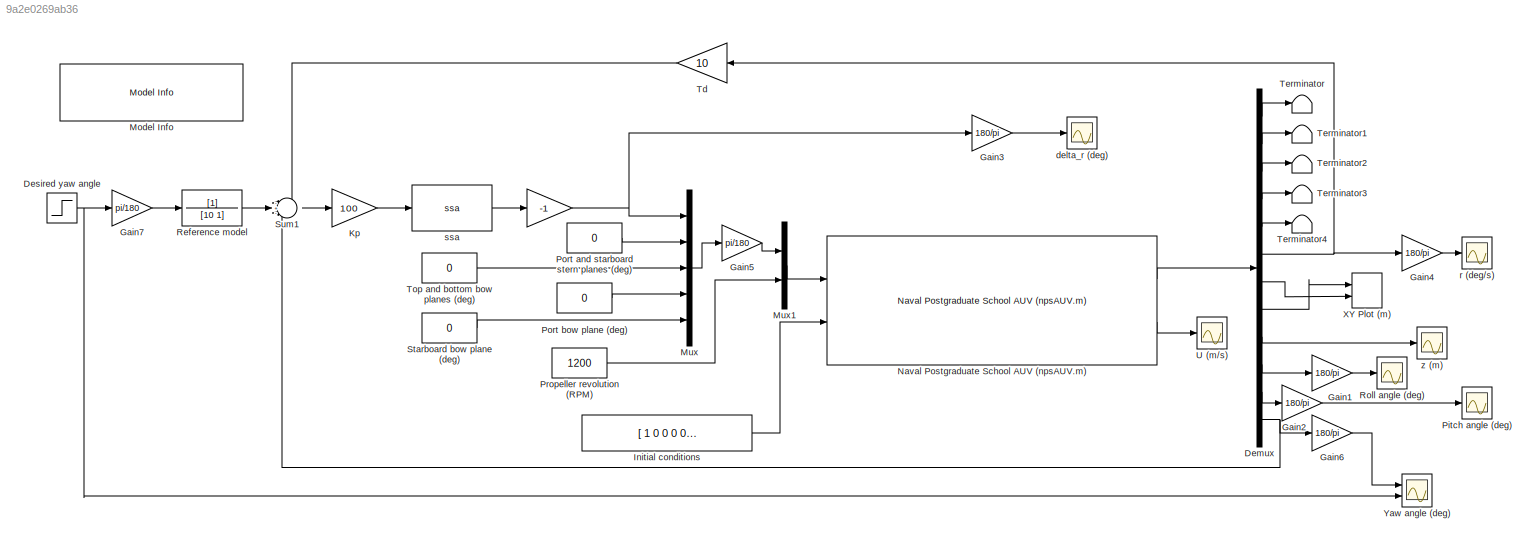
MODEL slx_9a2e0269ab36
KIND model
CONFIG AbsTol = auto
CONFIG EnableMultiTasking = on
CONFIG FixedStep = 0.05
CONFIG MaxStep = auto
CONFIG MinStep = auto
CONFIG RelTol = 1e-3
CONFIG SampleTimeConstraint = Unconstrained
CONFIG SolverName = ode4
CONFIG StartTime = 0.0
CONFIG StopTime = 200
BLOCK [Gain]    
  Gain = -1
  OutDataTypeStr = Inherit: Same as input
  ParamDataTypeStr = Inherit: Same as input
  SaturateOnIntegerOverflow = on
BLOCK [Demux] Demux
  Outputs = 12
  Ports = [1, 12]
BLOCK [Step] Desired yaw angle
  After = 10
  SampleTime = 0
  Time = 10
BLOCK [Gain] Gain1
  Gain = 180/pi
BLOCK [Gain] Gain2
  Gain = 180/pi
BLOCK [Gain] Gain3
  Gain = 180/pi
BLOCK [Gain] Gain4
  Gain = 180/pi
BLOCK [Gain] Gain5
  Gain = pi/180
BLOCK [Gain] Gain6
  Gain = 180/pi
BLOCK [Gain] Gain7
  Gain = pi/180
BLOCK [Constant] Initial conditions
  Value = [ 1 0 0 0 0 0 0 0 10 0 0 0]
BLOCK [Gain] Kp
  Gain = 100
  NameLocation = top
  OutDataTypeStr = Inherit: Same as input
  ParamDataTypeStr = Inherit: Same as input
  SaturateOnIntegerOverflow = on
BLOCK [Reference] Model Info  REF=simulink/Model-Wide
Utilities/Model Info
  Ports = []
  SourceBlock = simulink/Model-Wide\nUtilities/Model Info
  SourceProductBaseCode = SL
  SourceType = CMBlock
BLOCK [Mux] Mux
  DisplayOption = bar
  Inputs = 5
  Ports = [5, 1]
BLOCK [Mux] Mux1
  DisplayOption = bar
  Inputs = 2
  Ports = [2, 1]
BLOCK [Reference] Naval Postgraduate School AUV (npsAUV.m)   REF=mssSimulink/Marine craft models/Naval Postgraduate School AUV (npsAUV.m)
  Ports = [2, 2]
  SourceBlock = mssSimulink/Marine craft models/Naval Postgraduate School AUV (npsAUV.m)
BLOCK [Scope] Pitch angle (deg)
  Floating = off
  NumInputPorts = 1
  Ports = [1]
  ScopeSpecificationString = Simulink.scopes.TimeScopeBlockCfg('CurrentConfiguration', extmgr.ConfigurationSet(extmgr.Configuration('Core','General UI',true),extmgr.Configuration('Core','Source UI',true),extmgr.Configuration('Sources','WiredSimulink',true,'DataLoggingVariableName','ScopeData3'),extmgr.Configuration('Visuals','Time Domain',true,'SerializedDisplays',{struct('MinYLimReal','-0.07038','MaxYLimReal','0.00782','YLab...<+1413ch>
BLOCK [Constant] Port and starboard stern planes (deg)
  Value = 0
BLOCK [Constant] Port bow plane (deg)
  Value = 0
BLOCK [Constant] Propeller revolution (RPM)
  Value = 1200
BLOCK [TransferFcn] Reference model
  Denominator = [10 1]
BLOCK [Scope] Roll angle (deg)
  Floating = off
  NumInputPorts = 1
  Ports = [1]
  ScopeSpecificationString = Simulink.scopes.TimeScopeBlockCfg('CurrentConfiguration', extmgr.ConfigurationSet(extmgr.Configuration('Core','General UI',true),extmgr.Configuration('Core','Source UI',true),extmgr.Configuration('Sources','WiredSimulink',true,'DataLoggingVariableName','ScopeData2'),extmgr.Configuration('Visuals','Time Domain',true,'SerializedDisplays',{struct('MinYLimReal','-0.10782','MaxYLimReal','0.01199','YLab...<+1413ch>
BLOCK [Constant] Starboard bow plane (deg)
  Value = 0
BLOCK [Sum] Sum1
  InputSameDT = on
  Inputs = -+-
  OutDataTypeStr = Inherit: Same as first input
  Ports = [3, 1]
  SaturateOnIntegerOverflow = on
BLOCK [Gain] Td
  Gain = 10
  NameLocation = top
  OutDataTypeStr = Inherit: Same as input
  ParamDataTypeStr = Inherit: Same as input
  SaturateOnIntegerOverflow = on
BLOCK [Terminator] Terminator
BLOCK [Terminator] Terminator1
BLOCK [Terminator] Terminator2
BLOCK [Terminator] Terminator3
BLOCK [Terminator] Terminator4
BLOCK [Constant] Top and bottom bow planes (deg)
  Value = 0
BLOCK [Scope] U (m//s)
  Floating = off
  NumInputPorts = 1
  Ports = [1]
  ScopeSpecificationString = Simulink.scopes.TimeScopeBlockCfg('CurrentConfiguration', extmgr.ConfigurationSet(extmgr.Configuration('Core','General UI',true),extmgr.Configuration('Core','Source UI',true),extmgr.Configuration('Sources','WiredSimulink',true,'DataLoggingVariableName','ScopeData4'),extmgr.Configuration('Visuals','Time Domain',true,'SerializedDisplays',{struct('MinYLimReal','0.93685','MaxYLimReal','1.56839','YLabe...<+1383ch>
BLOCK [Record] XY Plot (m)
  CompatibilityTag = XY
  FileSettingsInternal = {"entries":[{"content":{"excelSettings":{"content":{},"type":"Streamout.ExcelSettings"}},"type":"Streamout.FileSettingStorage","uuid":"338e548b-ba49-44ba-8c2b-de95582423cd"}],"packageUris":["http://schema.mathworks.com/mf0/streamout_blocks/R2020a"],"version":"1.0"}
  Layout = [1 1]
  Ports = [2]
  SignalsInternal = {"entries":[{"content":{"signals":[{"content":{"blockPath":["demoNPSAUV/XY Plot (m)"],"channel":[],"dimensions":[1],"domain":"demoNPSAUV/XY Plot (m)","lineColor":"#a2142f","plots":[1],"port":1,"sid":[],"signalID":742,"signalName":"Demux:8"},"type":"RecordBlkView.Signal","uuid":"1648b224-b05f-4e59-bc9f-3cc2b6369dc8"},{"content":{"blockPath":["demoNPSAUV/XY Plot (m)"],"channel":[],"dimensions":[1],"...<+377ch>
  VisualizationBindings = {"xyplotplugin":{"info":[{"series":[{"bindingParametersList":[{"parameter":"X-Axis","signalID":742,"signalName":"Demux:8"},{"parameter":"Y-Axis","signalID":745,"signalName":"Demux:7"}],"seriesID":4661}],"subplotID":1}]}}
  st = -1
BLOCK [Scope] Yaw angle (deg)
  Floating = off
  NumInputPorts = 2
  Ports = [2]
  ScopeSpecificationString = Simulink.scopes.TimeScopeBlockCfg('CurrentConfiguration', extmgr.ConfigurationSet(extmgr.Configuration('Core','General UI',true),extmgr.Configuration('Core','Source UI',true),extmgr.Configuration('Sources','WiredSimulink',true),extmgr.Configuration('Visuals','Time Domain',true,'SerializedDisplays',{struct('MinYLimReal','-1.25','MaxYLimReal','11.25','YLabelReal','','MinYLimMag','0.00000','MaxYLimMa...<+1403ch>
BLOCK [Scope] delta_r (deg)
  Floating = off
  NumInputPorts = 1
  Ports = [1]
  ScopeSpecificationString = Simulink.scopes.TimeScopeBlockCfg('CurrentConfiguration', extmgr.ConfigurationSet(extmgr.Configuration('Core','General UI',true),extmgr.Configuration('Core','Source UI',true),extmgr.Configuration('Sources','WiredSimulink',true,'DataLoggingVariableName','ScopeData6'),extmgr.Configuration('Visuals','Time Domain',true,'SerializedDisplays',{struct('MinYLimReal','-113.73959','MaxYLimReal','12.63911','Y...<+1450ch>
BLOCK [Scope] r (deg//s)
  Floating = off
  NumInputPorts = 1
  Ports = [1]
  ScopeSpecificationString = Simulink.scopes.TimeScopeBlockCfg('CurrentConfiguration', extmgr.ConfigurationSet(extmgr.Configuration('Core','General UI',true),extmgr.Configuration('Core','Source UI',true),extmgr.Configuration('Sources','WiredSimulink',true,'DataLoggingVariableName','ScopeData5'),extmgr.Configuration('Visuals','Time Domain',true,'SerializedDisplays',{struct('MinYLimReal','-0.04285','MaxYLimReal','0.38561','YLab...<+1414ch>
BLOCK [Reference] ssa   REF=mssSimulink/Utilities/Math Operations/ssa
  Ports = [1, 1]
  SourceBlock = mssSimulink/Utilities/Math Operations/ssa
  SourceType = SubSystem
BLOCK [Scope] z (m)
  Floating = off
  NumInputPorts = 1
  Ports = [1]
  ScopeSpecificationString = Simulink.scopes.TimeScopeBlockCfg('CurrentConfiguration', extmgr.ConfigurationSet(extmgr.Configuration('Core','General UI',true),extmgr.Configuration('Core','Source UI',true),extmgr.Configuration('Sources','WiredSimulink',true,'DataLoggingVariableName','ScopeData1'),extmgr.Configuration('Visuals','Time Domain',true,'SerializedDisplays',{struct('MinYLimReal','9.98883','MaxYLimReal','10.10056','YLab...<+1387ch>
NET    :1 -> Gain3:1, Mux:1
LINE Demux:1 -> Terminator:1
LINE Demux:10 -> Gain1:1
LINE Demux:11 -> Gain2:1
NET Demux:12 -> Gain6:1, Sum1:3
LINE Demux:2 -> Terminator1:1
LINE Demux:3 -> Terminator2:1
LINE Demux:4 -> Terminator3:1
LINE Demux:5 -> Terminator4:1
NET Demux:6 -> Gain4:1, Td:1
LINE Demux:7 -> XY Plot (m):2
LINE Demux:8 -> XY Plot (m):1
LINE Demux:9 -> z (m):1
NET Desired yaw angle:1 -> Gain7:1, Yaw angle (deg):2
LINE Gain1:1 -> Roll angle (deg):1
LINE Gain2:1 -> Pitch angle (deg):1
LINE Gain3:1 -> delta_r (deg):1
LINE Gain4:1 -> r (deg//s):1
LINE Gain5:1 -> Mux1:1
LINE Gain6:1 -> Yaw angle (deg):1
LINE Gain7:1 -> Reference model:1
LINE Initial conditions:1 -> Naval Postgraduate School AUV (npsAUV.m) :2
LINE Kp:1 -> ssa :1
LINE Mux1:1 -> Naval Postgraduate School AUV (npsAUV.m) :1
LINE Mux:1 -> Gain5:1
LINE Naval Postgraduate School AUV (npsAUV.m) :1 -> Demux:1
LINE Naval Postgraduate School AUV (npsAUV.m) :2 -> U (m//s):1
LINE Port and starboard stern planes (deg):1 -> Mux:2
LINE Port bow plane (deg):1 -> Mux:4
LINE Propeller revolution (RPM):1 -> Mux1:2
LINE Reference model:1 -> Sum1:2
LINE Starboard bow plane (deg):1 -> Mux:5
LINE Sum1:1 -> Kp:1
LINE Td:1 -> Sum1:1
LINE Top and bottom bow planes (deg):1 -> Mux:3
LINE ssa :1 ->    :1
note: NET lines group one-source signal fan-out (src -> all destinations, sorted); 1:1 wires keep LINE
